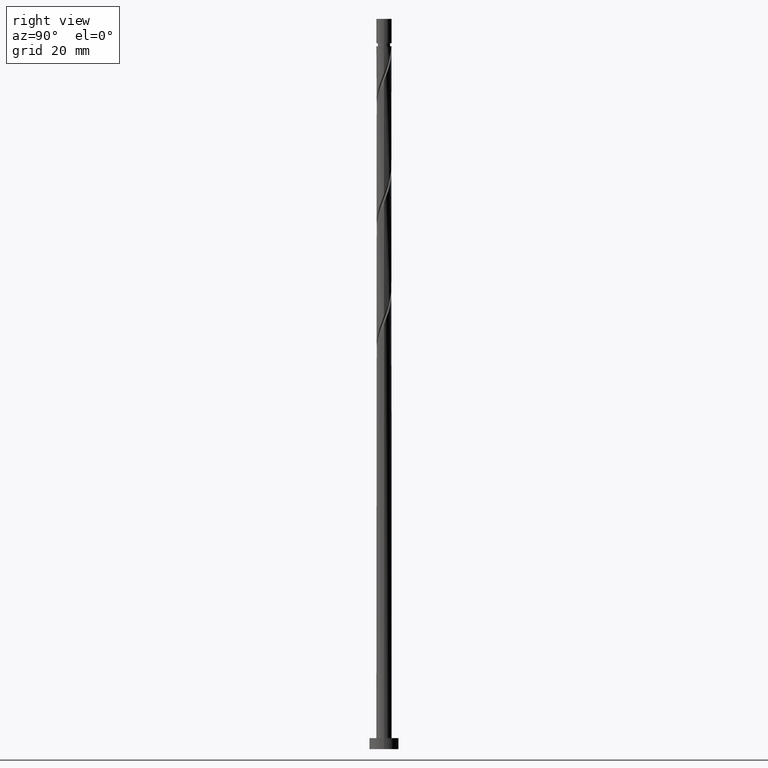
[diagram: clean part render]
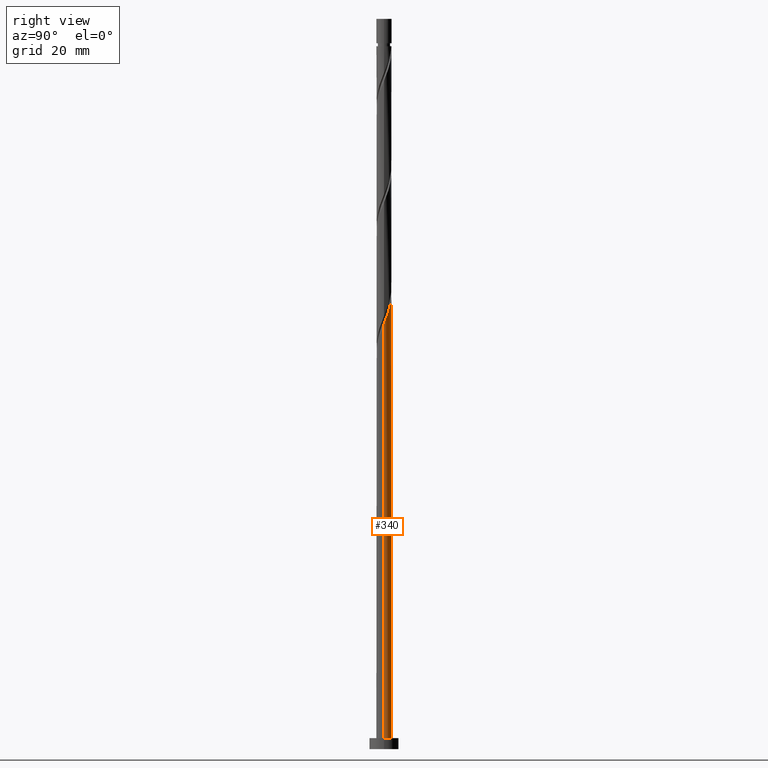
[diagram: same view with one face highlighted and labeled with its STEP entity id]
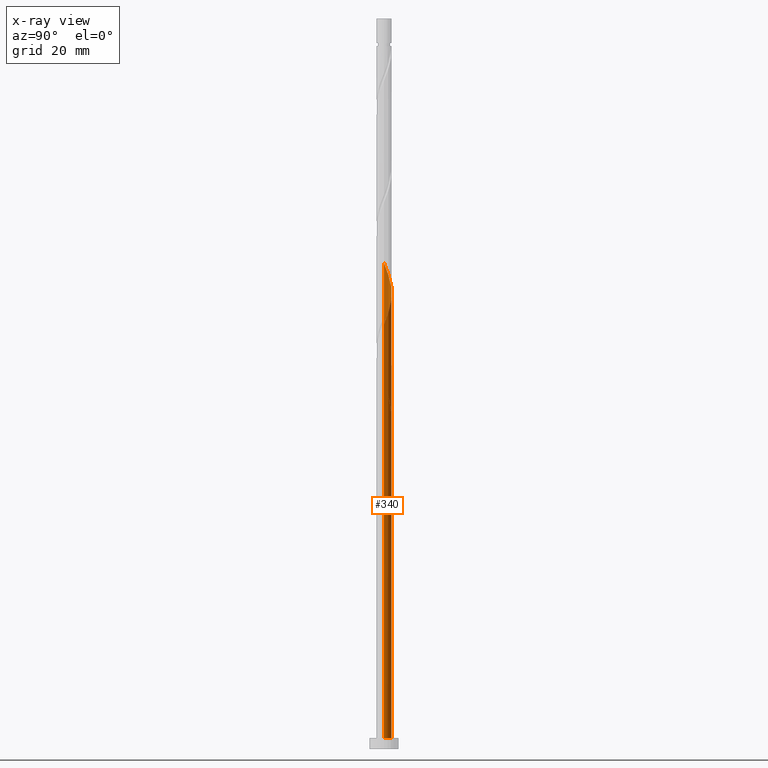
[diagram: x-ray of the same camera — body ghosted, the highlighted face saturated]
A machine part, right view. The second image highlights one B-rep face of the part: STEP entity #340.
The next image is the same camera in x-ray: the body ghosted, the highlighted face saturated — about 0% of this face is hidden behind the body in this view.
In plain terms, the highlighted cylindrical surface (edge-blend (fillet) strip) has radius 2.1 mm, axis along (-0, -0, -1).
Its self-contained STEP definition (entity closure, byte-faithful):
#12 = DIRECTION ( 'NONE',  ( 1.000000000000000000, 0.000000000000000000, 0.000000000000000000 ) ) ;
#22 = CARTESIAN_POINT ( 'NONE',  ( -0.6670925532681033499, 1.991227642780765139, 95.27396952154660426 ) ) ;
#70 = CIRCLE ( 'NONE', #1474, 2.100000000000000089 ) ;
#81 = EDGE_CURVE ( 'NONE', #1421, #1698, #626, .T. ) ;
#139 =( BOUNDED_CURVE ( )  B_SPLINE_CURVE ( 2, ( #460, #730, #1158, #475, #1188, #889, #1423, #1055, #632, #1598, #232, #761, #1034, #1715, #1586, #692, #275, #682, #539, #965, #1083, #557, #832, #1366, #164, #440, #1398 ),
 .UNSPECIFIED., .F., .T. ) 
 B_SPLINE_CURVE_WITH_KNOTS ( ( 3, 2, 2, 2, 2, 2, 2, 2, 2, 2, 2, 2, 2, 3 ),
 ( 0.1795317669814462669, 0.1875000000000000000, 0.1979166666666666297, 0.2083333333333333703, 0.2187500000000000000, 0.2291666666666666297, 0.2395833333333333703, 0.2500000000000000000, 0.2604166666666666297, 0.2708333333333333703, 0.2812500000000000000, 0.2916666666666666297, 0.3020833333333333703, 0.3045317669814465722 ),
 .UNSPECIFIED. ) 
 CURVE ( )  GEOMETRIC_REPRESENTATION_ITEM ( )  RATIONAL_B_SPLINE_CURVE ( ( 0.9062941362546566015, 0.9031415850403606838, 0.9090909090909363721, 0.9013135103398545178, 0.9090909090909363721, 0.9013135103398545178, 0.9090909090909363721, 0.9013135103398545178, 0.9090909090909363721, 0.9013135103398545178, 0.9090909090909363721, 0.9013135103398545178, 0.9090909090909363721, 0.9013135103398545178, 0.9090909090909363721, 0.9013135103398545178, 0.9090909090909363721, 0.9013135103398545178, 0.9090909090909363721, 0.9013135103398545178, 0.9090909090909363721, 0.9013135103398545178, 0.9090909090909363721, 0.9013135103398545178, 0.9090909090909363721, 0.9072628343904298731, 0.9062941362546563795 ) ) 
 REPRESENTATION_ITEM ( '' )  );
#146 = CARTESIAN_POINT ( 'NONE',  ( 0.000000000000000000, 0.000000000000000000, 3.000000000000000000 ) ) ;
#156 = CARTESIAN_POINT ( 'NONE',  ( -0.1289942886405161804, 2.096034463814497428, 93.88508063265773274 ) ) ;
#164 = CARTESIAN_POINT ( 'NONE',  ( -2.096034463814500093, 0.1289942886405172073, 132.7739695215466043 ) ) ;
#169 = CARTESIAN_POINT ( 'NONE',  ( -0.9292426457052539446, 1.903403242021066477, 95.96841396599104712 ) ) ;
#180 = VECTOR ( 'NONE', #925, 1000.000000000000000 ) ;
#188 = EDGE_LOOP ( 'NONE', ( #1291, #1018, #834, #1020, #1283, #432, #1632, #708 ) ) ;
#230 = CARTESIAN_POINT ( 'NONE',  ( -2.079052043540467132, 0.4049424608309540319, 98.74619174376886122 ) ) ;
#232 = CARTESIAN_POINT ( 'NONE',  ( 0.6670925532681055703, 1.991227642780768248, 123.0517472993243899 ) ) ;
#243 = CARTESIAN_POINT ( 'NONE',  ( -2.096034463814500093, 0.1289942886405172073, 99.44063618821326145 ) ) ;
#263 =( BOUNDED_CURVE ( )  B_SPLINE_CURVE ( 2, ( #1026, #776, #786, #754, #1041, #1559, #760, #353, #1157, #230, #243, #768, #1177 ),
 .UNSPECIFIED., .F., .T. ) 
 B_SPLINE_CURVE_WITH_KNOTS ( ( 3, 2, 2, 2, 2, 2, 3 ),
 ( 0.000000000000000000, 0.01041666666666662966, 0.02083333333333337034, 0.03125000000000000000, 0.04166666666666662966, 0.05208333333333337034, 0.05453176698144632933 ),
 .UNSPECIFIED. ) 
 CURVE ( )  GEOMETRIC_REPRESENTATION_ITEM ( )  RATIONAL_B_SPLINE_CURVE ( ( 0.9090909090909363721, 0.9013135103398545178, 0.9090909090909363721, 0.9013135103398545178, 0.9090909090909363721, 0.9013135103398545178, 0.9090909090909363721, 0.9013135103398545178, 0.9090909090909363721, 0.9013135103398545178, 0.9090909090909363721, 0.9072628343904300952, 0.9062941362546566015 ) ) 
 REPRESENTATION_ITEM ( '' )  );
#266 = VECTOR ( 'NONE', #1548, 1000.000000000000000 ) ;
#275 = CARTESIAN_POINT ( 'NONE',  ( -0.9363049010014600215, 1.879716237191310535, 127.2184139659910187 ) ) ;
#278 = CARTESIAN_POINT ( 'NONE',  ( 2.100000000000003197, 2.093529822106784298E-16, 116.4326250885587655 ) ) ;
#279 = CARTESIAN_POINT ( 'NONE',  ( -0.4049424608309529772, 2.079052043540464467, 94.57952507710218981 ) ) ;
#286 = CARTESIAN_POINT ( 'NONE',  ( -2.100000000000003197, -1.517809121027418622E-15, 99.76595842189209407 ) ) ;
#293 = CARTESIAN_POINT ( 'NONE',  ( 0.4178947235847815245, 2.057999999999999829, 92.49619174376883279 ) ) ;
#335 = VERTEX_POINT ( 'NONE', #1009 ) ;
#338 = EDGE_CURVE ( 'NONE', #335, #767, #1022, .T. ) ;
#340 = ADVANCED_FACE ( 'NONE', ( #561 ), #1104, .T. ) ;
#346 = AXIS2_PLACEMENT_3D ( 'NONE', #1376, #1526, #1088 ) ;
#353 = CARTESIAN_POINT ( 'NONE',  ( -1.903403242021069586, 0.9292426457052560540, 97.35730285487994706 ) ) ;
#404 = CARTESIAN_POINT ( 'NONE',  ( -2.057999999999999829, 0.4178947235847811359, 100.8295250771021614 ) ) ;
#426 = CARTESIAN_POINT ( 'NONE',  ( -2.100000000000000089, 0.2110579412044364112, 101.3596653631229287 ) ) ;
#432 = ORIENTED_EDGE ( 'NONE', *, *, #338, .T. ) ;
#440 = CARTESIAN_POINT ( 'NONE',  ( -2.100000000000002753, 0.06455809848110771743, 132.9361280671973020 ) ) ;
#460 = CARTESIAN_POINT ( 'NONE',  ( 2.100000000000003197, 2.093529822106784298E-16, 116.4326250885587655 ) ) ;
#475 = CARTESIAN_POINT ( 'NONE',  ( 2.002983115911472378, 0.6888355636196419329, 118.1906361882132899 ) ) ;
#510 = CARTESIAN_POINT ( 'NONE',  ( -2.100000000000003197, -1.517809121027418622E-15, 133.0992917552254369 ) ) ;
#539 = CARTESIAN_POINT ( 'NONE',  ( -1.390907446731897812, 1.573332919195986390, 128.6073028548798902 ) ) ;
#557 = CARTESIAN_POINT ( 'NONE',  ( -1.903403242021069586, 0.9292426457052560540, 130.6906361882132899 ) ) ;
#561 = FACE_OUTER_BOUND ( 'NONE', #188, .T. ) ;
#572 = CARTESIAN_POINT ( 'NONE',  ( -1.573332919195983726, 1.390907446731896258, 98.05174729932437572 ) ) ;
#595 = EDGE_CURVE ( 'NONE', #1235, #1390, #139, .T. ) ;
#626 = LINE ( 'NONE', #1406, #266 ) ;
#630 = VERTEX_POINT ( 'NONE', #1638 ) ;
#631 = LINE ( 'NONE', #1292, #180 ) ;
#632 = CARTESIAN_POINT ( 'NONE',  ( 1.159729562813040404, 1.750721948550792773, 121.6628584104355184 ) ) ;
#680 = CARTESIAN_POINT ( 'NONE',  ( 2.100000000000000089, 2.571758278209441957E-16, 200.0000000000000000 ) ) ;
#682 = CARTESIAN_POINT ( 'NONE',  ( -1.183774238383278332, 1.756449358471148692, 127.9128584104355042 ) ) ;
#688 = DIRECTION ( 'NONE',  ( -0.000000000000000000, -0.000000000000000000, -1.000000000000000000 ) ) ;
#692 = CARTESIAN_POINT ( 'NONE',  ( -0.6888355636196424880, 2.002983115911471934, 126.5239695215466185 ) ) ;
#704 = DIRECTION ( 'NONE',  ( -0.000000000000000000, -0.000000000000000000, -1.000000000000000000 ) ) ;
#708 = ORIENTED_EDGE ( 'NONE', *, *, #782, .F. ) ;
#730 = CARTESIAN_POINT ( 'NONE',  ( 2.100000000000003642, 0.2110579412044323311, 116.9660514577480370 ) ) ;
#754 = CARTESIAN_POINT ( 'NONE',  ( -1.183774238383278332, 1.756449358471148692, 94.57952507710220402 ) ) ;
#760 = CARTESIAN_POINT ( 'NONE',  ( -1.750721948550793661, 1.159729562813039960, 96.66285841043548999 ) ) ;
#761 = CARTESIAN_POINT ( 'NONE',  ( 0.4049424608309553086, 2.079052043540467132, 123.7461917437688470 ) ) ;
#767 = VERTEX_POINT ( 'NONE', #1566 ) ;
#768 = CARTESIAN_POINT ( 'NONE',  ( -2.100000000000002309, 0.06455809848111432325, 99.60279473386394500 ) ) ;
#776 = CARTESIAN_POINT ( 'NONE',  ( -0.6888355636196424880, 2.002983115911471934, 93.19063618821327566 ) ) ;
#782 = EDGE_CURVE ( 'NONE', #1390, #630, #631, .T. ) ;
#786 = CARTESIAN_POINT ( 'NONE',  ( -0.9363049010014600215, 1.879716237191310535, 93.88508063265770431 ) ) ;
#822 = CARTESIAN_POINT ( 'NONE',  ( -1.159729562813037962, 1.750721948550791440, 96.66285841043547578 ) ) ;
#830 = CARTESIAN_POINT ( 'NONE',  ( 0.1469538835499204499, 2.113016884088530833, 93.19063618821330408 ) ) ;
#832 = CARTESIAN_POINT ( 'NONE',  ( -1.991227642780768248, 0.6670925532681050152, 131.3850806326577185 ) ) ;
#834 = ORIENTED_EDGE ( 'NONE', *, *, #1236, .T. ) ;
#836 = EDGE_CURVE ( 'NONE', #335, #1421, #263, .T. ) ;
#840 = DIRECTION ( 'NONE',  ( -1.000000000000000000, 0.000000000000000000, 0.000000000000000000 ) ) ;
#843 = CARTESIAN_POINT ( 'NONE',  ( -1.879716237191306982, 0.9363049010014593554, 99.44063618821326145 ) ) ;
#864 =( BOUNDED_CURVE ( )  B_SPLINE_CURVE ( 2, ( #1498, #426, #404, #1404, #843, #1546, #572, #1106, #822, #169, #22, #279, #156, #830, #293 ),
 .UNSPECIFIED., .F., .T. ) 
 B_SPLINE_CURVE_WITH_KNOTS ( ( 3, 2, 2, 2, 2, 2, 2, 3 ),
 ( 0.9295317669814463502, 0.9375000000000000000, 0.9479166666666666297, 0.9583333333333333703, 0.9687500000000000000, 0.9791666666666666297, 0.9895833333333333703, 1.000000000000000000 ),
 .UNSPECIFIED. ) 
 CURVE ( )  GEOMETRIC_REPRESENTATION_ITEM ( )  RATIONAL_B_SPLINE_CURVE ( ( 0.9062941362546503843, 0.9031415850403545775, 0.9090909090909301549, 0.9013135103398484116, 0.9090909090909301549, 0.9013135103398484116, 0.9090909090909301549, 0.9013135103398484116, 0.9090909090909301549, 0.9013135103398484116, 0.9090909090909301549, 0.9013135103398484116, 0.9090909090909301549, 0.9013135103398484116, 0.9090909090909301549 ) ) 
 REPRESENTATION_ITEM ( '' )  );
#889 = CARTESIAN_POINT ( 'NONE',  ( 1.756449358471149358, 1.183774238383276778, 119.5795250771021898 ) ) ;
#925 = DIRECTION ( 'NONE',  ( -0.000000000000000000, -0.000000000000000000, -1.000000000000000000 ) ) ;
#965 = CARTESIAN_POINT ( 'NONE',  ( -1.598040655080518402, 1.390216479920824977, 129.3017472993244041 ) ) ;
#1009 = CARTESIAN_POINT ( 'NONE',  ( -0.4178947235847808583, 2.058000000000002938, 92.49619174376883279 ) ) ;
#1013 = CARTESIAN_POINT ( 'NONE',  ( -2.100000000000000089, 0.000000000000000000, 3.000000000000000000 ) ) ;
#1018 = ORIENTED_EDGE ( 'NONE', *, *, #1539, .T. ) ;
#1020 = ORIENTED_EDGE ( 'NONE', *, *, #81, .F. ) ;
#1022 = CIRCLE ( 'NONE', #346, 2.100000000000000089 ) ;
#1026 = CARTESIAN_POINT ( 'NONE',  ( -0.4178947235847808583, 2.058000000000002938, 92.49619174376883279 ) ) ;
#1034 = CARTESIAN_POINT ( 'NONE',  ( 0.1289942886405185118, 2.096034463814500537, 124.4406361882132899 ) ) ;
#1041 = CARTESIAN_POINT ( 'NONE',  ( -1.390907446731897812, 1.573332919195986390, 95.27396952154661847 ) ) ;
#1055 = CARTESIAN_POINT ( 'NONE',  ( 1.390216479920826087, 1.598040655080517070, 120.9684139659910471 ) ) ;
#1083 = CARTESIAN_POINT ( 'NONE',  ( -1.750721948550793661, 1.159729562813039960, 129.9961917437688328 ) ) ;
#1088 = DIRECTION ( 'NONE',  ( 0.000000000000000000, 1.000000000000000000, -3.304235192336775117E-14 ) ) ;
#1090 = DIRECTION ( 'NONE',  ( 0.000000000000000000, 0.000000000000000000, 1.000000000000000000 ) ) ;
#1104 = CYLINDRICAL_SURFACE ( 'NONE', #1673, 2.100000000000000089 ) ;
#1106 = CARTESIAN_POINT ( 'NONE',  ( -1.390216479920822756, 1.598040655080516403, 97.35730285487993285 ) ) ;
#1157 = CARTESIAN_POINT ( 'NONE',  ( -1.991227642780768248, 0.6670925532681050152, 98.05174729932437572 ) ) ;
#1158 = CARTESIAN_POINT ( 'NONE',  ( 2.058000000000002938, 0.4178947235847809138, 117.4961917437688470 ) ) ;
#1177 = CARTESIAN_POINT ( 'NONE',  ( -2.100000000000003197, -1.517809121027418622E-15, 99.76595842189209407 ) ) ;
#1188 = CARTESIAN_POINT ( 'NONE',  ( 1.879716237191310979, 0.9363049010014593554, 118.8850806326576901 ) ) ;
#1235 = VERTEX_POINT ( 'NONE', #278 ) ;
#1236 = EDGE_CURVE ( 'NONE', #1656, #1698, #70, .T. ) ;
#1240 = LINE ( 'NONE', #680, #1595 ) ;
#1283 = ORIENTED_EDGE ( 'NONE', *, *, #836, .F. ) ;
#1291 = ORIENTED_EDGE ( 'NONE', *, *, #595, .F. ) ;
#1292 = CARTESIAN_POINT ( 'NONE',  ( -2.100000000000000089, 0.000000000000000000, 200.0000000000000000 ) ) ;
#1366 = CARTESIAN_POINT ( 'NONE',  ( -2.079052043540467132, 0.4049424608309540319, 132.0795250771021756 ) ) ;
#1376 = CARTESIAN_POINT ( 'NONE',  ( 0.000000000000000000, 0.000000000000000000, 92.49619174376890385 ) ) ;
#1390 = VERTEX_POINT ( 'NONE', #510 ) ;
#1398 = CARTESIAN_POINT ( 'NONE',  ( -2.100000000000003197, -1.517809121027418622E-15, 133.0992917552254369 ) ) ;
#1404 = CARTESIAN_POINT ( 'NONE',  ( -2.002983115911469270, 0.6888355636196418219, 100.1350806326577185 ) ) ;
#1406 = CARTESIAN_POINT ( 'NONE',  ( -2.100000000000000089, 0.000000000000000000, 200.0000000000000000 ) ) ;
#1421 = VERTEX_POINT ( 'NONE', #286 ) ;
#1423 = CARTESIAN_POINT ( 'NONE',  ( 1.573332919195987500, 1.390907446731896702, 120.2739695215466043 ) ) ;
#1455 = EDGE_CURVE ( 'NONE', #630, #767, #864, .T. ) ;
#1474 = AXIS2_PLACEMENT_3D ( 'NONE', #146, #1090, #12 ) ;
#1498 = CARTESIAN_POINT ( 'NONE',  ( -2.100000000000000089, 2.572050924302638169E-15, 101.8930917323122287 ) ) ;
#1526 = DIRECTION ( 'NONE',  ( 0.000000000000000000, -3.304235192336778904E-14, -1.000000000000000000 ) ) ;
#1539 = EDGE_CURVE ( 'NONE', #1235, #1656, #1240, .T. ) ;
#1546 = CARTESIAN_POINT ( 'NONE',  ( -1.756449358471145805, 1.183774238383276556, 98.74619174376883279 ) ) ;
#1548 = DIRECTION ( 'NONE',  ( -0.000000000000000000, -0.000000000000000000, -1.000000000000000000 ) ) ;
#1559 = CARTESIAN_POINT ( 'NONE',  ( -1.598040655080518402, 1.390216479920824977, 95.96841396599103291 ) ) ;
#1566 = CARTESIAN_POINT ( 'NONE',  ( 0.4178947235847815245, 2.057999999999999829, 92.49619174376883279 ) ) ;
#1568 = CARTESIAN_POINT ( 'NONE',  ( 2.100000000000000089, 2.571758278209441957E-16, 3.000000000000000000 ) ) ;
#1586 = CARTESIAN_POINT ( 'NONE',  ( -0.4178947235847808583, 2.058000000000002938, 125.8295250771021472 ) ) ;
#1595 = VECTOR ( 'NONE', #704, 1000.000000000000000 ) ;
#1598 = CARTESIAN_POINT ( 'NONE',  ( 0.9292426457052567201, 1.903403242021069364, 122.3573028548799471 ) ) ;
#1628 = CARTESIAN_POINT ( 'NONE',  ( 0.000000000000000000, 0.000000000000000000, 200.0000000000000000 ) ) ;
#1632 = ORIENTED_EDGE ( 'NONE', *, *, #1455, .F. ) ;
#1638 = CARTESIAN_POINT ( 'NONE',  ( -2.100000000000000089, 2.572050924302638169E-15, 101.8930917323122287 ) ) ;
#1656 = VERTEX_POINT ( 'NONE', #1568 ) ;
#1673 = AXIS2_PLACEMENT_3D ( 'NONE', #1628, #688, #840 ) ;
#1698 = VERTEX_POINT ( 'NONE', #1013 ) ;
#1715 = CARTESIAN_POINT ( 'NONE',  ( -0.1469538835499181739, 2.113016884088533942, 125.1350806326577185 ) ) ;